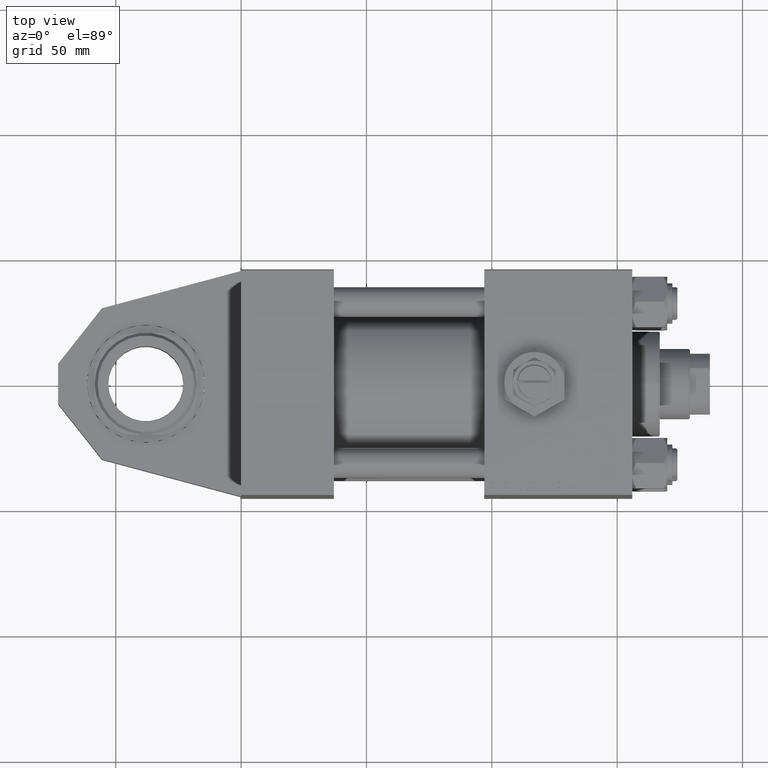
[diagram: clean part render]
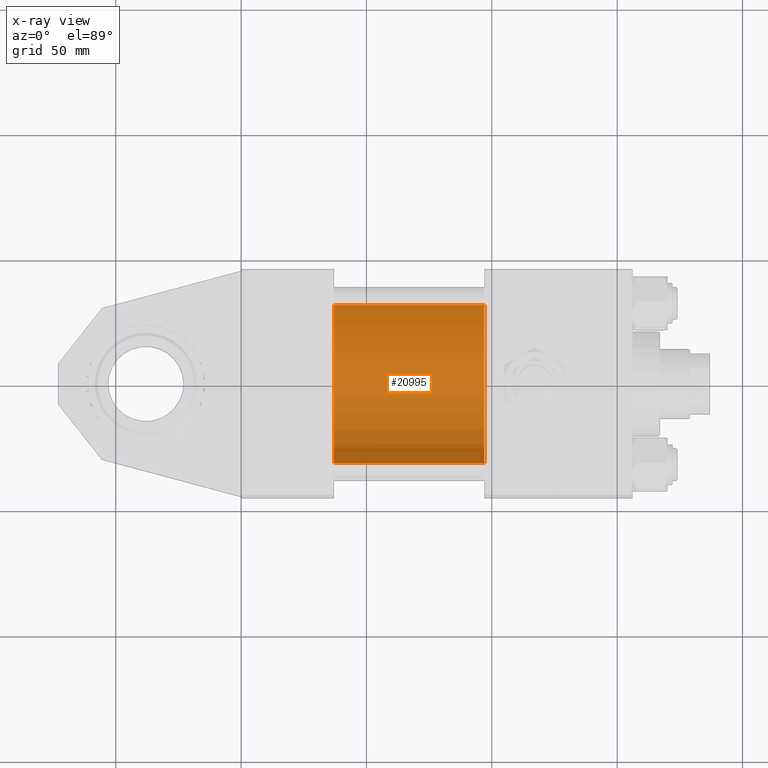
[diagram: x-ray — body ghosted, one internal face saturated and labeled with its STEP entity id]
A machine part, top view, then the same camera in x-ray: the body is ghosted and one INTERNAL B-rep face — a face not visible from any outside direction — is saturated and labeled: STEP entity #20995.
In plain terms, the highlighted cylindrical surface (partial cylindrical patch) has radius 31.5 mm, axis along (-1, 0, -0).
Its self-contained STEP definition (entity closure, byte-faithful):
#117 = ORIENTED_EDGE ( 'NONE', *, *, #14302, .T. ) ;
#1597 = EDGE_LOOP ( 'NONE', ( #16668, #117, #9052, #6615 ) ) ;
#3115 = VERTEX_POINT ( 'NONE', #15664 ) ;
#3527 = CARTESIAN_POINT ( 'NONE',  ( 97.00000000000000000, -2.602085213965210642E-15, 31.50000000000000000 ) ) ;
#4168 = DIRECTION ( 'NONE',  ( -1.000000000000000000, -0.000000000000000000, -0.000000000000000000 ) ) ;
#6615 = ORIENTED_EDGE ( 'NONE', *, *, #49208, .F. ) ;
#7851 = CARTESIAN_POINT ( 'NONE',  ( 97.00000000000000000, -2.602085213965210642E-15, 31.50000000000000000 ) ) ;
#8156 = CARTESIAN_POINT ( 'NONE',  ( 97.00000000000000000, -2.602085213965210642E-15, 0.000000000000000000 ) ) ;
#8678 = DIRECTION ( 'NONE',  ( 1.000000000000000000, 0.000000000000000000, 0.000000000000000000 ) ) ;
#9052 = ORIENTED_EDGE ( 'NONE', *, *, #21905, .F. ) ;
#10079 = CARTESIAN_POINT ( 'NONE',  ( 97.00000000000000000, 1.255552203348951850E-15, -31.50000000000000000 ) ) ;
#12232 = AXIS2_PLACEMENT_3D ( 'NONE', #37288, #8678, #16824 ) ;
#12485 = DIRECTION ( 'NONE',  ( 0.000000000000000000, 0.000000000000000000, -1.000000000000000000 ) ) ;
#14302 = EDGE_CURVE ( 'NONE', #32215, #25637, #49721, .T. ) ;
#15664 = CARTESIAN_POINT ( 'NONE',  ( 37.00000000000000000, -2.602085213965210642E-15, 31.50000000000000000 ) ) ;
#16289 = VERTEX_POINT ( 'NONE', #3527 ) ;
#16668 = ORIENTED_EDGE ( 'NONE', *, *, #44055, .T. ) ;
#16824 = DIRECTION ( 'NONE',  ( 0.000000000000000000, 0.000000000000000000, -1.000000000000000000 ) ) ;
#18674 = VECTOR ( 'NONE', #26094, 1000.000000000000000 ) ;
#19417 = LINE ( 'NONE', #7851, #47894 ) ;
#20995 = ADVANCED_FACE ( 'NONE', ( #51493 ), #31793, .F. ) ;
#21905 = EDGE_CURVE ( 'NONE', #3115, #25637, #27307, .T. ) ;
#22980 = CARTESIAN_POINT ( 'NONE',  ( 97.00000000000000000, 1.255552203348951850E-15, -31.50000000000000000 ) ) ;
#23109 = AXIS2_PLACEMENT_3D ( 'NONE', #8156, #48051, #44114 ) ;
#25637 = VERTEX_POINT ( 'NONE', #30734 ) ;
#26094 = DIRECTION ( 'NONE',  ( -1.000000000000000000, -0.000000000000000000, -0.000000000000000000 ) ) ;
#27307 = CIRCLE ( 'NONE', #12232, 31.50000000000000000 ) ;
#30734 = CARTESIAN_POINT ( 'NONE',  ( 37.00000000000000000, 1.255552203348951850E-15, -31.50000000000000000 ) ) ;
#31793 = CYLINDRICAL_SURFACE ( 'NONE', #23109, 31.50000000000000000 ) ;
#32215 = VERTEX_POINT ( 'NONE', #22980 ) ;
#33723 = CARTESIAN_POINT ( 'NONE',  ( 97.00000000000000000, -2.602085213965210642E-15, 0.000000000000000000 ) ) ;
#37288 = CARTESIAN_POINT ( 'NONE',  ( 37.00000000000000000, -2.602085213965210642E-15, 0.000000000000000000 ) ) ;
#38526 = CIRCLE ( 'NONE', #40215, 31.50000000000000000 ) ;
#40215 = AXIS2_PLACEMENT_3D ( 'NONE', #33723, #49222, #12485 ) ;
#44055 = EDGE_CURVE ( 'NONE', #16289, #32215, #38526, .T. ) ;
#44114 = DIRECTION ( 'NONE',  ( 0.000000000000000000, 0.000000000000000000, 1.000000000000000000 ) ) ;
#47894 = VECTOR ( 'NONE', #4168, 1000.000000000000000 ) ;
#48051 = DIRECTION ( 'NONE',  ( -1.000000000000000000, -0.000000000000000000, -0.000000000000000000 ) ) ;
#49208 = EDGE_CURVE ( 'NONE', #16289, #3115, #19417, .T. ) ;
#49222 = DIRECTION ( 'NONE',  ( 1.000000000000000000, 0.000000000000000000, 0.000000000000000000 ) ) ;
#49721 = LINE ( 'NONE', #10079, #18674 ) ;
#51493 = FACE_OUTER_BOUND ( 'NONE', #1597, .T. ) ;